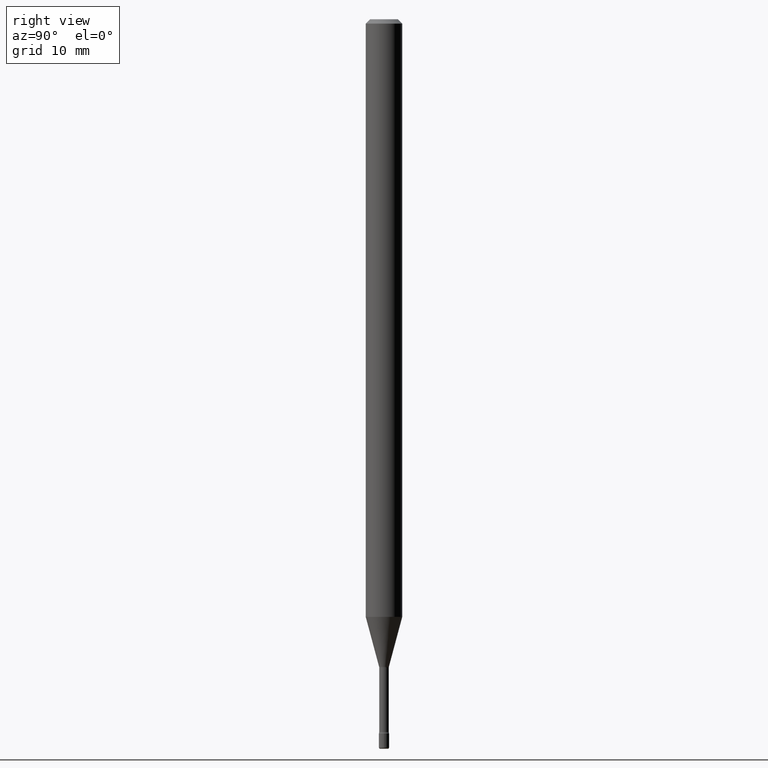
[diagram: clean part render]
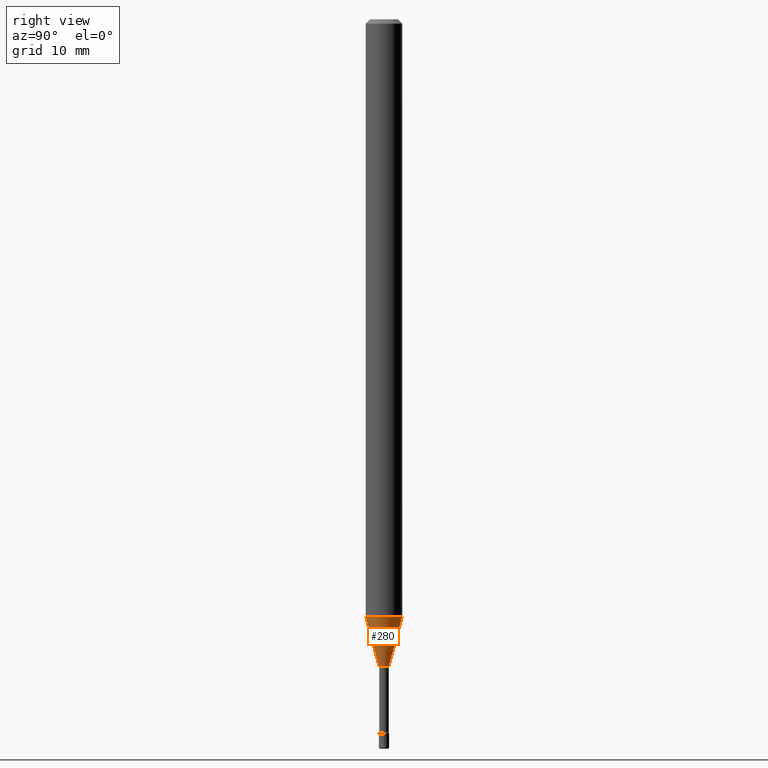
[diagram: same view with one face highlighted and labeled with its STEP entity id]
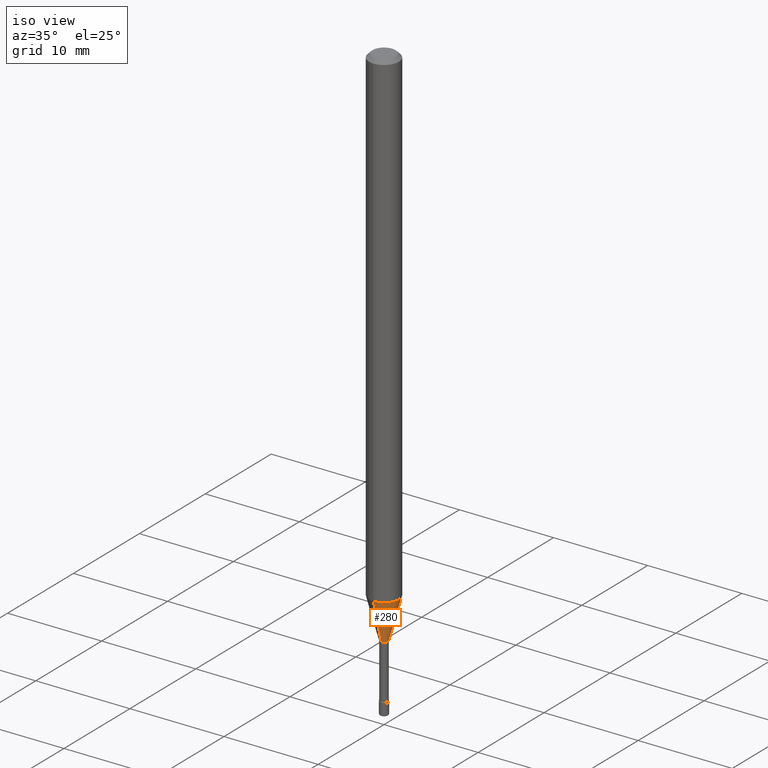
[diagram: same view with one face highlighted and labeled with its STEP entity id]
A machine part, right view. The second image highlights one B-rep face of the part: STEP entity #280.
A second angle (iso view) of the same face is appended — the face is thin or edge-on in the first view.
In plain terms, the highlighted conical surface has half-angle 15 deg.
Its self-contained STEP definition (entity closure, byte-faithful):
#18 = DIRECTION ( 'NONE',  ( -2.445543985909815616E-29, 3.491373677198440860E-15, 1.000000000000000000 ) ) ;
#26 = EDGE_CURVE ( 'NONE', #563, #55, #237, .T. ) ;
#27 = DIRECTION ( 'NONE',  ( -6.982962677686265922E-15, -1.000000000000000000, 4.370956789862821150E-15 ) ) ;
#40 = LINE ( 'NONE', #192, #459 ) ;
#42 = EDGE_LOOP ( 'NONE', ( #536, #546, #139, #82 ) ) ;
#51 = VERTEX_POINT ( 'NONE', #243 ) ;
#55 = VERTEX_POINT ( 'NONE', #296 ) ;
#60 = EDGE_CURVE ( 'NONE', #51, #467, #271, .T. ) ;
#70 = VECTOR ( 'NONE', #245, 39.37007874015748854 ) ;
#82 = ORIENTED_EDGE ( 'NONE', *, *, #356, .F. ) ;
#105 = CARTESIAN_POINT ( 'NONE',  ( 5.008814161251656206E-29, -7.150818802413359726E-15, -2.048139060311453541 ) ) ;
#123 = FACE_OUTER_BOUND ( 'NONE', #42, .T. ) ;
#125 = CONICAL_SURFACE ( 'NONE', #360, 0.01696111260566397771, 0.2617993877991500740 ) ;
#138 = AXIS2_PLACEMENT_3D ( 'NONE', #105, #18, #27 ) ;
#139 = ORIENTED_EDGE ( 'NONE', *, *, #26, .F. ) ;
#180 = LINE ( 'NONE', #319, #70 ) ;
#192 = CARTESIAN_POINT ( 'NONE',  ( 1.205159535236902748E-16, 0.01696111260565623391, -2.218092501787273019 ) ) ;
#215 = DIRECTION ( 'NONE',  ( 1.839019923739598738E-15, 0.2588190451025247363, 0.9659258262890673130 ) ) ;
#237 = CIRCLE ( 'NONE', #138, 0.06250000000000000000 ) ;
#243 = CARTESIAN_POINT ( 'NONE',  ( -1.184388162973313820E-16, -0.01696111260567172499, -2.218092501787273019 ) ) ;
#245 = DIRECTION ( 'NONE',  ( -1.807323732225328562E-15, -0.2588190451025179639, 0.9659258262890690894 ) ) ;
#255 = DIRECTION ( 'NONE',  ( -2.445543985909815616E-29, 3.491373677198440860E-15, 1.000000000000000000 ) ) ;
#258 = EDGE_CURVE ( 'NONE', #467, #55, #40, .T. ) ;
#271 = CIRCLE ( 'NONE', #403, 0.01696111260566397771 ) ;
#280 = ADVANCED_FACE ( 'NONE', ( #123 ), #125, .T. ) ;
#296 = CARTESIAN_POINT ( 'NONE',  ( 4.440892098501126102E-16, 0.06249999999999283906, -2.048139060311453985 ) ) ;
#319 = CARTESIAN_POINT ( 'NONE',  ( -1.184388162973313820E-16, -0.01696111260567172499, -2.218092501787273019 ) ) ;
#356 = EDGE_CURVE ( 'NONE', #51, #563, #180, .T. ) ;
#360 = AXIS2_PLACEMENT_3D ( 'NONE', #468, #255, #565 ) ;
#373 = CARTESIAN_POINT ( 'NONE',  ( 5.424442777937523841E-29, -7.744189774331321425E-15, -2.218092501787273019 ) ) ;
#403 = AXIS2_PLACEMENT_3D ( 'NONE', #373, #460, #451 ) ;
#419 = CARTESIAN_POINT ( 'NONE',  ( -4.364351673553416753E-16, -0.06250000000000717482, -2.048139060311453541 ) ) ;
#451 = DIRECTION ( 'NONE',  ( -6.982962677686266711E-15, -1.000000000000000000, 0.000000000000000000 ) ) ;
#459 = VECTOR ( 'NONE', #215, 39.37007874015748854 ) ;
#460 = DIRECTION ( 'NONE',  ( -2.445543985909815616E-29, 3.491373677198440860E-15, 1.000000000000000000 ) ) ;
#467 = VERTEX_POINT ( 'NONE', #492 ) ;
#468 = CARTESIAN_POINT ( 'NONE',  ( 5.424442777937523841E-29, -7.744189774331321425E-15, -2.218092501787273019 ) ) ;
#492 = CARTESIAN_POINT ( 'NONE',  ( 2.823025816869015904E-16, 0.01696111260565623738, -2.218092501787273019 ) ) ;
#536 = ORIENTED_EDGE ( 'NONE', *, *, #60, .T. ) ;
#546 = ORIENTED_EDGE ( 'NONE', *, *, #258, .T. ) ;
#563 = VERTEX_POINT ( 'NONE', #419 ) ;
#565 = DIRECTION ( 'NONE',  ( -6.982962677686266711E-15, -1.000000000000000000, 0.000000000000000000 ) ) ;